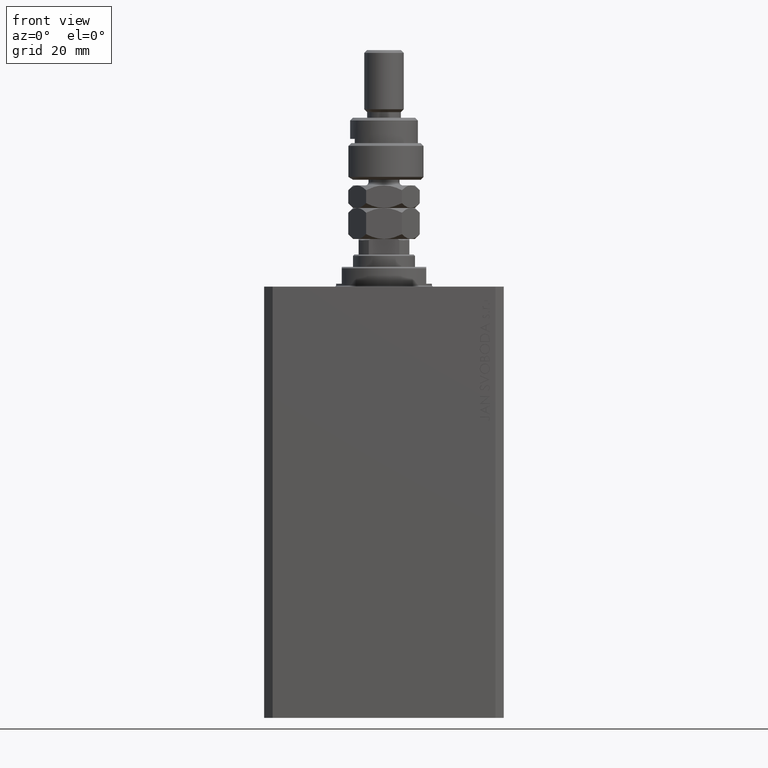
[diagram: clean part render]
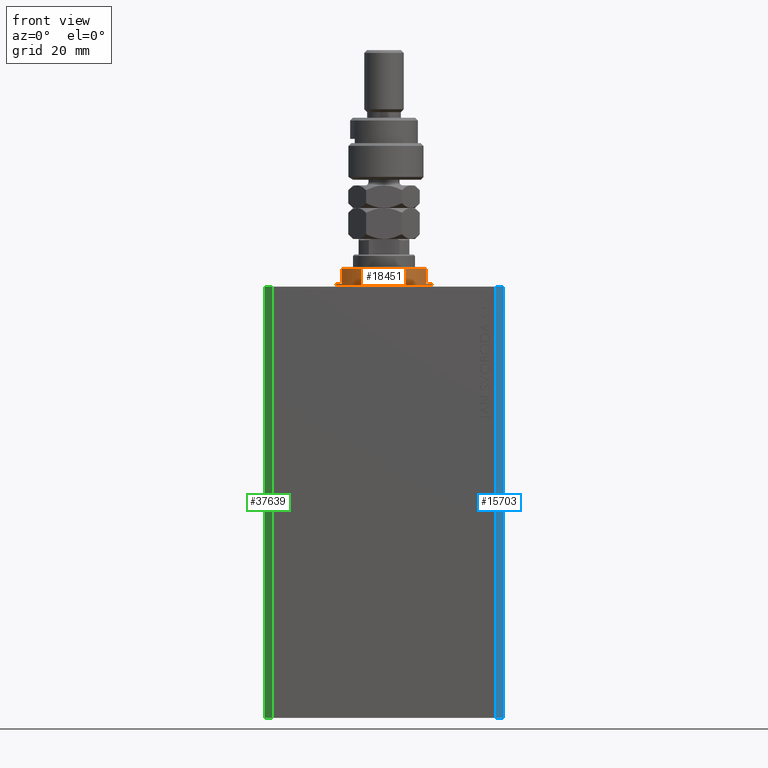
[diagram: same view with three faces highlighted in distinct colors, each labeled with its STEP entity id]
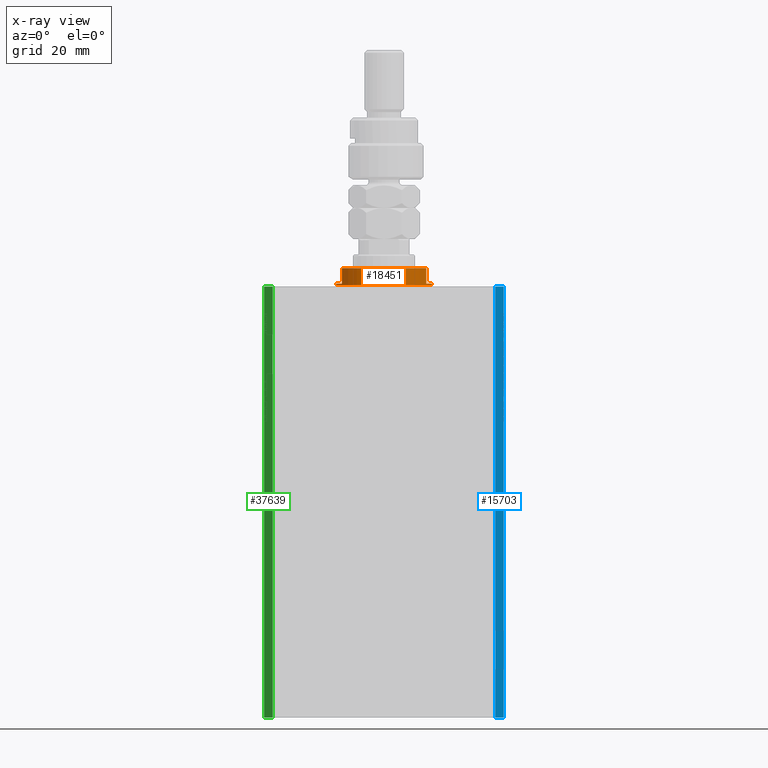
[diagram: x-ray of the same camera — body ghosted, the three highlighted faces saturated]
A machine part, front view with three faces highlighted in distinct colors.
The next image is the same camera in x-ray (body ghosted, the three faces saturated) — at least one of them is partly hidden behind the body in this view.
Their STEP definitions:

[orange] entity #18451 — the highlighted cylindrical surface (partial cylindrical patch) has radius 17 mm, axis along (0, 0, -1).
#1918 = AXIS2_PLACEMENT_3D ( 'NONE', #42087, #34931, #31575 ) ;
#2209 = ORIENTED_EDGE ( 'NONE', *, *, #8329, .T. ) ;
#2344 = DIRECTION ( 'NONE',  ( -1.000000000000000000, 0.000000000000000000, 0.000000000000000000 ) ) ;
#2635 = FACE_OUTER_BOUND ( 'NONE', #32782, .T. ) ;
#2700 = CARTESIAN_POINT ( 'NONE',  ( -15.00000000000000000, -8.000000000000001776, -7.000000000000000000 ) ) ;
#3238 = VERTEX_POINT ( 'NONE', #4014 ) ;
#4014 = CARTESIAN_POINT ( 'NONE',  ( 15.00000000000000000, -8.000000000000001776, -6.500000000000000000 ) ) ;
#4717 = DIRECTION ( 'NONE',  ( 0.000000000000000000, 0.000000000000000000, -1.000000000000000000 ) ) ;
#4874 = DIRECTION ( 'NONE',  ( 0.000000000000000000, 0.000000000000000000, -1.000000000000000000 ) ) ;
#5298 = ORIENTED_EDGE ( 'NONE', *, *, #21604, .F. ) ;
#5957 = CARTESIAN_POINT ( 'NONE',  ( -17.00000000000000000, 2.081899558550500280E-15, -1.000000000000000000 ) ) ;
#7146 = LINE ( 'NONE', #14307, #16149 ) ;
#7524 = CARTESIAN_POINT ( 'NONE',  ( 14.99999999999999645, -8.000000000000003553, -1.000000000000000000 ) ) ;
#7571 = EDGE_CURVE ( 'NONE', #18351, #32090, #30801, .T. ) ;
#8258 = CARTESIAN_POINT ( 'NONE',  ( -14.99999999999999645, -8.000000000000003553, -1.000000000000000000 ) ) ;
#8329 = EDGE_CURVE ( 'NONE', #24112, #3238, #11018, .T. ) ;
#8387 = ORIENTED_EDGE ( 'NONE', *, *, #18132, .T. ) ;
#8739 = CARTESIAN_POINT ( 'NONE',  ( 0.000000000000000000, 0.000000000000000000, -1.000000000000000000 ) ) ;
#8792 = CIRCLE ( 'NONE', #1918, 17.00000000000000000 ) ;
#10624 = CIRCLE ( 'NONE', #36479, 17.00000000000000000 ) ;
#11018 = CIRCLE ( 'NONE', #21694, 17.00000000000000000 ) ;
#11993 = VERTEX_POINT ( 'NONE', #13331 ) ;
#12042 = LINE ( 'NONE', #26563, #22800 ) ;
#12216 = VERTEX_POINT ( 'NONE', #8258 ) ;
#13331 = CARTESIAN_POINT ( 'NONE',  ( 17.00000000000000000, 0.000000000000000000, -0.4999999999999995559 ) ) ;
#14307 = CARTESIAN_POINT ( 'NONE',  ( -17.00000000000000000, 2.081899558550500280E-15, -7.000000000000000000 ) ) ;
#15440 = CARTESIAN_POINT ( 'NONE',  ( 0.000000000000000000, 0.000000000000000000, -1.000000000000000000 ) ) ;
#15553 = VERTEX_POINT ( 'NONE', #5957 ) ;
#16149 = VECTOR ( 'NONE', #28596, 1000.000000000000000 ) ;
#16900 = EDGE_CURVE ( 'NONE', #12216, #15553, #10624, .T. ) ;
#17828 = CARTESIAN_POINT ( 'NONE',  ( -15.00000000000000000, -8.000000000000001776, -6.500000000000000888 ) ) ;
#17893 = AXIS2_PLACEMENT_3D ( 'NONE', #8739, #40703, #41408 ) ;
#18132 = EDGE_CURVE ( 'NONE', #12216, #24112, #42980, .T. ) ;
#18351 = VERTEX_POINT ( 'NONE', #30758 ) ;
#18451 = ADVANCED_FACE ( 'NONE', ( #2635 ), #42464, .T. ) ;
#21604 = EDGE_CURVE ( 'NONE', #15553, #29747, #7146, .T. ) ;
#21694 = AXIS2_PLACEMENT_3D ( 'NONE', #23792, #38829, #2344 ) ;
#22200 = DIRECTION ( 'NONE',  ( -0.000000000000000000, -0.000000000000000000, 1.000000000000000000 ) ) ;
#22800 = VECTOR ( 'NONE', #4874, 1000.000000000000000 ) ;
#23525 = CARTESIAN_POINT ( 'NONE',  ( -17.00000000000000000, 2.081899558550500280E-15, -0.4999999999999995559 ) ) ;
#23792 = CARTESIAN_POINT ( 'NONE',  ( 0.000000000000000000, 0.000000000000000000, -6.500000000000000000 ) ) ;
#24112 = VERTEX_POINT ( 'NONE', #17828 ) ;
#25082 = DIRECTION ( 'NONE',  ( 0.000000000000000000, 0.000000000000000000, -1.000000000000000000 ) ) ;
#25320 = EDGE_CURVE ( 'NONE', #18351, #11993, #35819, .T. ) ;
#26563 = CARTESIAN_POINT ( 'NONE',  ( 15.00000000000000000, -8.000000000000001776, -7.000000000000000000 ) ) ;
#28284 = ORIENTED_EDGE ( 'NONE', *, *, #45364, .F. ) ;
#28596 = DIRECTION ( 'NONE',  ( -0.000000000000000000, -0.000000000000000000, 1.000000000000000000 ) ) ;
#29747 = VERTEX_POINT ( 'NONE', #23525 ) ;
#30758 = CARTESIAN_POINT ( 'NONE',  ( 17.00000000000000000, 0.000000000000000000, -1.000000000000000000 ) ) ;
#30801 = CIRCLE ( 'NONE', #17893, 17.00000000000000000 ) ;
#31034 = EDGE_CURVE ( 'NONE', #11993, #29747, #8792, .T. ) ;
#31575 = DIRECTION ( 'NONE',  ( 1.000000000000000000, 0.000000000000000000, 0.000000000000000000 ) ) ;
#32090 = VERTEX_POINT ( 'NONE', #7524 ) ;
#32175 = DIRECTION ( 'NONE',  ( -0.000000000000000000, -0.000000000000000000, 1.000000000000000000 ) ) ;
#32782 = EDGE_LOOP ( 'NONE', ( #5298, #35779, #8387, #2209, #28284, #34784, #43552, #45617 ) ) ;
#34784 = ORIENTED_EDGE ( 'NONE', *, *, #7571, .F. ) ;
#34931 = DIRECTION ( 'NONE',  ( -0.000000000000000000, -0.000000000000000000, -1.000000000000000000 ) ) ;
#35779 = ORIENTED_EDGE ( 'NONE', *, *, #16900, .F. ) ;
#35819 = LINE ( 'NONE', #36045, #36057 ) ;
#36045 = CARTESIAN_POINT ( 'NONE',  ( 17.00000000000000000, 0.000000000000000000, -7.000000000000000000 ) ) ;
#36057 = VECTOR ( 'NONE', #22200, 1000.000000000000000 ) ;
#36479 = AXIS2_PLACEMENT_3D ( 'NONE', #15440, #4717, #41200 ) ;
#38829 = DIRECTION ( 'NONE',  ( 0.000000000000000000, 0.000000000000000000, 1.000000000000000000 ) ) ;
#39117 = DIRECTION ( 'NONE',  ( 1.000000000000000000, 0.000000000000000000, 0.000000000000000000 ) ) ;
#40703 = DIRECTION ( 'NONE',  ( 0.000000000000000000, 0.000000000000000000, -1.000000000000000000 ) ) ;
#41200 = DIRECTION ( 'NONE',  ( -1.000000000000000000, 0.000000000000000000, 0.000000000000000000 ) ) ;
#41408 = DIRECTION ( 'NONE',  ( -1.000000000000000000, 0.000000000000000000, 0.000000000000000000 ) ) ;
#42087 = CARTESIAN_POINT ( 'NONE',  ( 0.000000000000000000, 0.000000000000000000, -0.4999999999999995559 ) ) ;
#42464 = CYLINDRICAL_SURFACE ( 'NONE', #45783, 17.00000000000000000 ) ;
#42980 = LINE ( 'NONE', #2700, #45752 ) ;
#43160 = CARTESIAN_POINT ( 'NONE',  ( 0.000000000000000000, 0.000000000000000000, -7.000000000000000000 ) ) ;
#43552 = ORIENTED_EDGE ( 'NONE', *, *, #25320, .T. ) ;
#45364 = EDGE_CURVE ( 'NONE', #32090, #3238, #12042, .T. ) ;
#45617 = ORIENTED_EDGE ( 'NONE', *, *, #31034, .T. ) ;
#45752 = VECTOR ( 'NONE', #25082, 1000.000000000000000 ) ;
#45783 = AXIS2_PLACEMENT_3D ( 'NONE', #43160, #32175, #39117 ) ;

[blue] entity #15703 — the highlighted planar face has unit normal (0.7071, -0.7071, 0).
#2563 = DIRECTION ( 'NONE',  ( 0.7071067811865483499, 0.7071067811865466846, 0.000000000000000000 ) ) ;
#3250 = EDGE_CURVE ( 'NONE', #5897, #28921, #35981, .T. ) ;
#3323 = DIRECTION ( 'NONE',  ( 0.7071067811865483499, 0.7071067811865466846, 0.000000000000000000 ) ) ;
#3475 = ORIENTED_EDGE ( 'NONE', *, *, #17297, .F. ) ;
#4405 = LINE ( 'NONE', #39939, #44871 ) ;
#5897 = VERTEX_POINT ( 'NONE', #36055 ) ;
#9483 = LINE ( 'NONE', #27832, #37651 ) ;
#12445 = ORIENTED_EDGE ( 'NONE', *, *, #45188, .T. ) ;
#14044 = CARTESIAN_POINT ( 'NONE',  ( 39.50000000000000711, -31.50000000000000000, -153.0000000000000000 ) ) ;
#15703 = ADVANCED_FACE ( 'NONE', ( #32618 ), #29034, .T. ) ;
#17297 = EDGE_CURVE ( 'NONE', #40430, #5897, #21787, .T. ) ;
#18681 = CARTESIAN_POINT ( 'NONE',  ( 42.50000000000000711, -28.50000000000000355, -153.0000000000000000 ) ) ;
#21787 = LINE ( 'NONE', #24902, #37323 ) ;
#21815 = DIRECTION ( 'NONE',  ( 0.000000000000000000, 0.000000000000000000, 1.000000000000000000 ) ) ;
#22700 = VERTEX_POINT ( 'NONE', #18681 ) ;
#24667 = VECTOR ( 'NONE', #3323, 1000.000000000000000 ) ;
#24902 = CARTESIAN_POINT ( 'NONE',  ( 39.50000000000000711, -31.50000000000000000, -153.0000000000000000 ) ) ;
#25194 = ORIENTED_EDGE ( 'NONE', *, *, #3250, .F. ) ;
#27832 = CARTESIAN_POINT ( 'NONE',  ( 39.50000000000000711, -31.50000000000000000, -153.0000000000000000 ) ) ;
#28247 = DIRECTION ( 'NONE',  ( 0.000000000000000000, 0.000000000000000000, 1.000000000000000000 ) ) ;
#28291 = EDGE_CURVE ( 'NONE', #40430, #22700, #9483, .T. ) ;
#28573 = DIRECTION ( 'NONE',  ( 0.7071067811865483499, 0.7071067811865466846, 0.000000000000000000 ) ) ;
#28921 = VERTEX_POINT ( 'NONE', #41436 ) ;
#29034 = PLANE ( 'NONE',  #40179 ) ;
#31607 = CARTESIAN_POINT ( 'NONE',  ( 39.50000000000000711, -31.50000000000000000, -153.0000000000000000 ) ) ;
#32618 = FACE_OUTER_BOUND ( 'NONE', #43366, .T. ) ;
#32867 = CARTESIAN_POINT ( 'NONE',  ( 39.50000000000000711, -31.50000000000000000, 0.000000000000000000 ) ) ;
#35981 = LINE ( 'NONE', #32867, #24667 ) ;
#36055 = CARTESIAN_POINT ( 'NONE',  ( 39.50000000000000711, -31.50000000000000000, 0.000000000000000000 ) ) ;
#37323 = VECTOR ( 'NONE', #28247, 1000.000000000000000 ) ;
#37651 = VECTOR ( 'NONE', #2563, 1000.000000000000000 ) ;
#39939 = CARTESIAN_POINT ( 'NONE',  ( 42.50000000000000711, -28.50000000000000355, -153.0000000000000000 ) ) ;
#40179 = AXIS2_PLACEMENT_3D ( 'NONE', #14044, #43595, #28573 ) ;
#40430 = VERTEX_POINT ( 'NONE', #31607 ) ;
#41436 = CARTESIAN_POINT ( 'NONE',  ( 42.50000000000000711, -28.50000000000000355, 0.000000000000000000 ) ) ;
#43366 = EDGE_LOOP ( 'NONE', ( #25194, #3475, #47192, #12445 ) ) ;
#43595 = DIRECTION ( 'NONE',  ( 0.7071067811865466846, -0.7071067811865483499, 0.000000000000000000 ) ) ;
#44871 = VECTOR ( 'NONE', #21815, 1000.000000000000000 ) ;
#45188 = EDGE_CURVE ( 'NONE', #22700, #28921, #4405, .T. ) ;
#47192 = ORIENTED_EDGE ( 'NONE', *, *, #28291, .T. ) ;

[green] entity #37639 — the highlighted planar face has unit normal (-0.7071, -0.7071, 0).
#8 = VERTEX_POINT ( 'NONE', #19630 ) ;
#969 = LINE ( 'NONE', #30053, #1720 ) ;
#1720 = VECTOR ( 'NONE', #44620, 1000.000000000000000 ) ;
#2638 = EDGE_CURVE ( 'NONE', #4817, #32286, #12831, .T. ) ;
#2936 = DIRECTION ( 'NONE',  ( 0.7071067811865471286, -0.7071067811865479058, 0.000000000000000000 ) ) ;
#3857 = LINE ( 'NONE', #36054, #28405 ) ;
#4817 = VERTEX_POINT ( 'NONE', #43511 ) ;
#5441 = DIRECTION ( 'NONE',  ( -0.7071067811865479058, -0.7071067811865471286, 0.000000000000000000 ) ) ;
#5470 = VECTOR ( 'NONE', #39626, 1000.000000000000000 ) ;
#10831 = VERTEX_POINT ( 'NONE', #12098 ) ;
#12098 = CARTESIAN_POINT ( 'NONE',  ( -39.50000000000000711, -31.50000000000000000, -153.0000000000000000 ) ) ;
#12831 = LINE ( 'NONE', #20446, #13288 ) ;
#13288 = VECTOR ( 'NONE', #34502, 1000.000000000000000 ) ;
#13819 = EDGE_LOOP ( 'NONE', ( #46486, #33786, #32794, #35213 ) ) ;
#14861 = CARTESIAN_POINT ( 'NONE',  ( -42.50000000000000000, -28.50000000000000000, 0.000000000000000000 ) ) ;
#15937 = PLANE ( 'NONE',  #40105 ) ;
#16410 = DIRECTION ( 'NONE',  ( 0.7071067811865471286, -0.7071067811865479058, 0.000000000000000000 ) ) ;
#19630 = CARTESIAN_POINT ( 'NONE',  ( -39.50000000000000711, -31.50000000000000000, 0.000000000000000000 ) ) ;
#20446 = CARTESIAN_POINT ( 'NONE',  ( -42.50000000000000000, -28.50000000000000000, -153.0000000000000000 ) ) ;
#20550 = EDGE_CURVE ( 'NONE', #32286, #8, #43209, .T. ) ;
#23046 = EDGE_CURVE ( 'NONE', #10831, #8, #969, .T. ) ;
#23549 = FACE_OUTER_BOUND ( 'NONE', #13819, .T. ) ;
#23769 = EDGE_CURVE ( 'NONE', #4817, #10831, #3857, .T. ) ;
#25073 = CARTESIAN_POINT ( 'NONE',  ( -42.50000000000000000, -28.50000000000000000, 0.000000000000000000 ) ) ;
#28405 = VECTOR ( 'NONE', #2936, 1000.000000000000000 ) ;
#30053 = CARTESIAN_POINT ( 'NONE',  ( -39.50000000000000711, -31.50000000000000000, -153.0000000000000000 ) ) ;
#30937 = CARTESIAN_POINT ( 'NONE',  ( -42.50000000000000000, -28.50000000000000000, -153.0000000000000000 ) ) ;
#32286 = VERTEX_POINT ( 'NONE', #14861 ) ;
#32794 = ORIENTED_EDGE ( 'NONE', *, *, #23769, .T. ) ;
#33786 = ORIENTED_EDGE ( 'NONE', *, *, #2638, .F. ) ;
#34502 = DIRECTION ( 'NONE',  ( 0.000000000000000000, 0.000000000000000000, 1.000000000000000000 ) ) ;
#35213 = ORIENTED_EDGE ( 'NONE', *, *, #23046, .T. ) ;
#36054 = CARTESIAN_POINT ( 'NONE',  ( -42.50000000000000000, -28.50000000000000000, -153.0000000000000000 ) ) ;
#37639 = ADVANCED_FACE ( 'NONE', ( #23549 ), #15937, .T. ) ;
#39626 = DIRECTION ( 'NONE',  ( 0.7071067811865471286, -0.7071067811865479058, 0.000000000000000000 ) ) ;
#40105 = AXIS2_PLACEMENT_3D ( 'NONE', #30937, #5441, #16410 ) ;
#43209 = LINE ( 'NONE', #25073, #5470 ) ;
#43511 = CARTESIAN_POINT ( 'NONE',  ( -42.50000000000000000, -28.50000000000000000, -153.0000000000000000 ) ) ;
#44620 = DIRECTION ( 'NONE',  ( 0.000000000000000000, 0.000000000000000000, 1.000000000000000000 ) ) ;
#46486 = ORIENTED_EDGE ( 'NONE', *, *, #20550, .F. ) ;